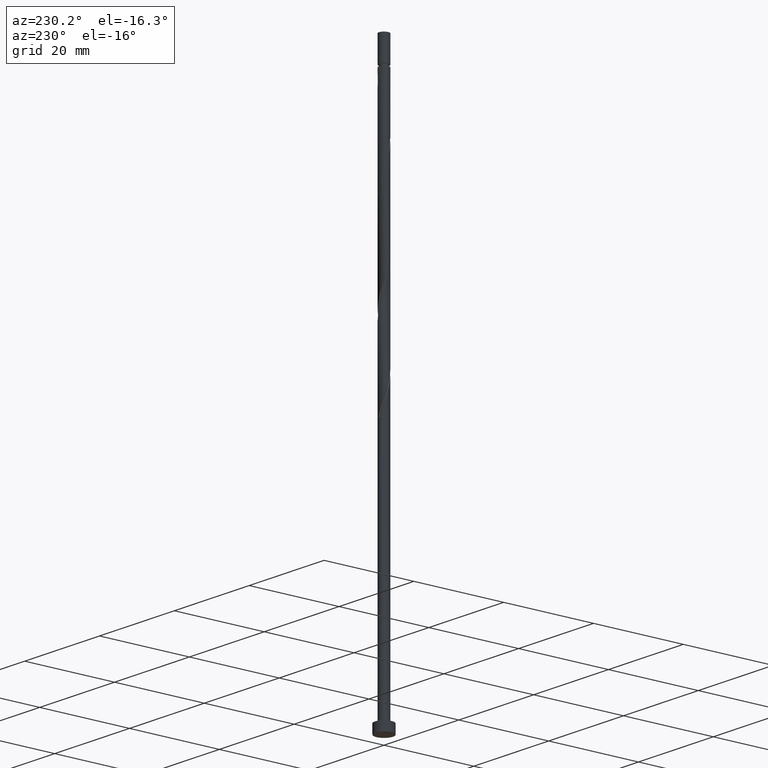
[diagram: clean part render]
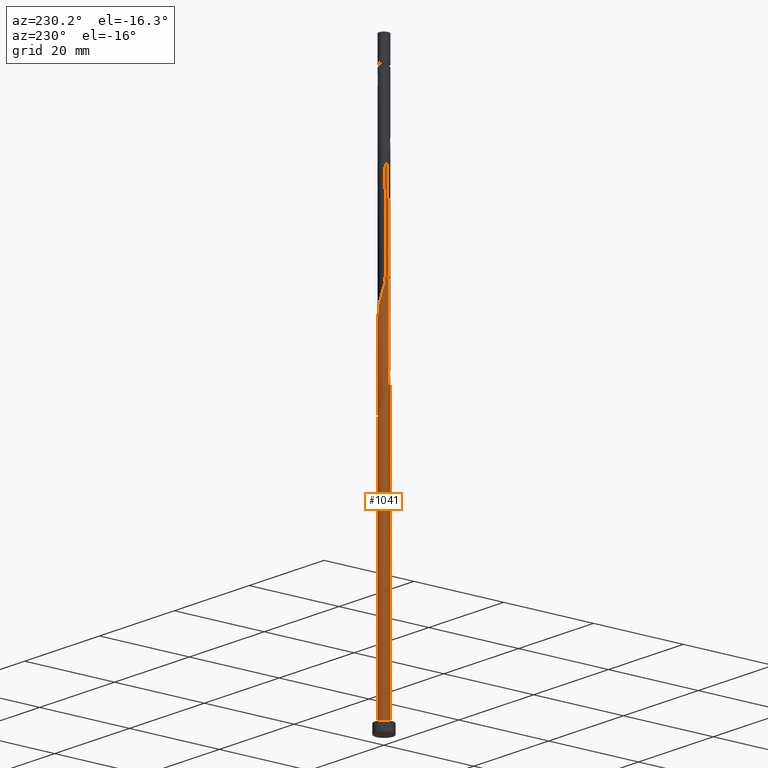
[diagram: same view with one face highlighted and labeled with its STEP entity id]
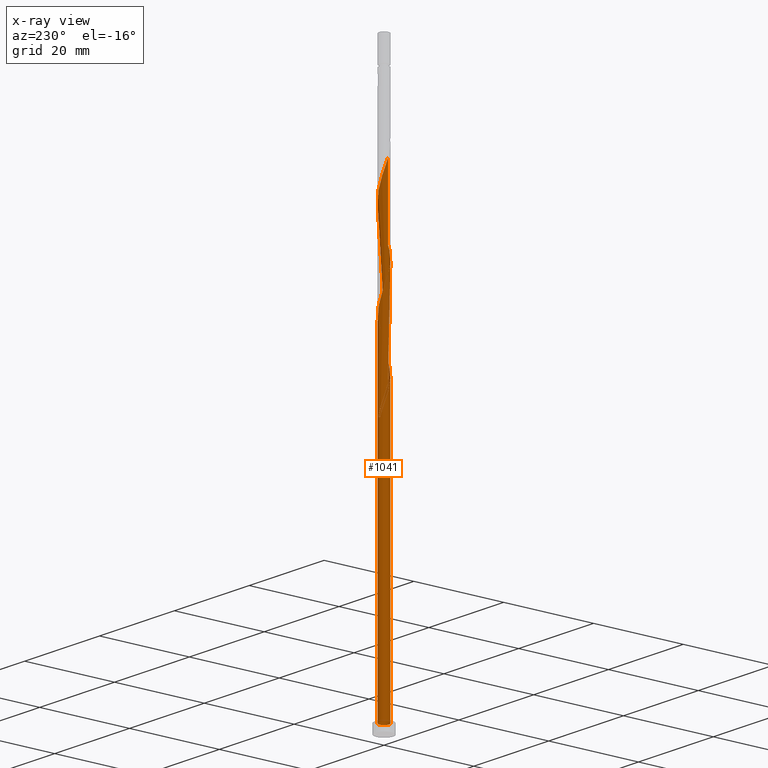
[diagram: x-ray of the same camera — body ghosted, the highlighted face saturated]
A machine part, auxiliary view. The second image highlights one B-rep face of the part: STEP entity #1041.
The next image is the same camera in x-ray: the body ghosted, the highlighted face saturated — about 0% of this face is hidden behind the body in this view.
In plain terms, the highlighted cylindrical surface (bore or boss wall) has radius 1.1 mm, axis along (-0, -0, -1).
Its self-contained STEP definition (entity closure, byte-faithful):
#5 = CARTESIAN_POINT ( 'NONE',  ( -0.7434557527517323683, 0.8107240860492294088, 59.56361197831976284 ) ) ;
#7 = CARTESIAN_POINT ( 'NONE',  ( -0.9575959585699627130, -0.5413039627884481675, 83.52194531165308433 ) ) ;
#8 = CARTESIAN_POINT ( 'NONE',  ( -1.100000000000001643, -3.748275695801401353E-16, 102.6488095368494839 ) ) ;
#14 = CARTESIAN_POINT ( 'NONE',  ( -1.078000000000001846, -0.2188972361634564656, 82.48027864498642714 ) ) ;
#17 = CIRCLE ( 'NONE', #398, 1.100000000000000089 ) ;
#22 = CARTESIAN_POINT ( 'NONE',  ( -0.5413039627884481675, 0.9575959585699624910, 99.14694531165307012 ) ) ;
#47 = CARTESIAN_POINT ( 'NONE',  ( -1.000784887120656830, 0.4565409178933442225, 59.56361197831974863 ) ) ;
#57 = CARTESIAN_POINT ( 'NONE',  ( 0.9575959585699627130, 0.5413039627884479454, 73.10527864498641293 ) ) ;
#66 = CARTESIAN_POINT ( 'NONE',  ( 0.04815880949360597241, -1.112669916238338219, 66.33444531165309854 ) ) ;
#68 = CARTESIAN_POINT ( 'NONE',  ( 1.073093864886444315, -0.2980321636614850500, 70.50111197831976995 ) ) ;
#70 = ORIENTED_EDGE ( 'NONE', *, *, #1308, .F. ) ;
#79 = CARTESIAN_POINT ( 'NONE',  ( 1.078000000000001846, 0.2188972361634563546, 72.06361197831975574 ) ) ;
#89 = ORIENTED_EDGE ( 'NONE', *, *, #100, .T. ) ;
#97 = VERTEX_POINT ( 'NONE', #531 ) ;
#100 = EDGE_CURVE ( 'NONE', #660, #97, #350, .T. ) ;
#101 = CARTESIAN_POINT ( 'NONE',  ( -0.3896356628333069727, 1.043330083761664806, 77.79277864498642714 ) ) ;
#108 = DIRECTION ( 'NONE',  ( 1.000000000000000000, 0.000000000000000000, 0.000000000000000000 ) ) ;
#109 = CARTESIAN_POINT ( 'NONE',  ( 0.04815880949360597241, -1.112669916238338219, 87.16777864498641293 ) ) ;
#117 = VECTOR ( 'NONE', #976, 1000.000000000000000 ) ;
#118 = CARTESIAN_POINT ( 'NONE',  ( -0.8718618333782606200, 0.6929722627435896953, 60.08444531165309854 ) ) ;
#120 = CARTESIAN_POINT ( 'NONE',  ( -0.04815880949360587526, 1.112669916238338219, 76.75111197831979837 ) ) ;
#125 = CARTESIAN_POINT ( 'NONE',  ( -1.078000000000001846, -0.2188972361634564656, 61.64694531165309854 ) ) ;
#127 = CARTESIAN_POINT ( 'NONE',  ( -0.5413039627884481675, 0.9575959585699624910, 78.31361197831976995 ) ) ;
#128 = CARTESIAN_POINT ( 'NONE',  ( -0.2188972361634562991, 1.078000000000001846, 56.43861197831975574 ) ) ;
#133 = CARTESIAN_POINT ( 'NONE',  ( 0.8718618333782610641, 0.6929722627435893623, 94.45944531165308433 ) ) ;
#138 = CARTESIAN_POINT ( 'NONE',  ( -0.7434557527517321462, -0.8107240860492292978, 63.73027864498641293 ) ) ;
#173 = CARTESIAN_POINT ( 'NONE',  ( -0.2188972361634562991, 1.078000000000001846, 56.43861197831975574 ) ) ;
#185 = CARTESIAN_POINT ( 'NONE',  ( 0.2188972361634567709, 1.078000000000001402, 56.43861197831975574 ) ) ;
#188 = ORIENTED_EDGE ( 'NONE', *, *, #686, .T. ) ;
#202 = VERTEX_POINT ( 'NONE', #773 ) ;
#204 = CARTESIAN_POINT ( 'NONE',  ( -0.6150496721252038945, 0.9284759093548696773, 59.04277864498644135 ) ) ;
#213 = CARTESIAN_POINT ( 'NONE',  ( -1.100000000000001865, -0.1105541596785120373, 61.31644744559066140 ) ) ;
#228 = CARTESIAN_POINT ( 'NONE',  ( -1.112669916238338219, -0.04815880949360610425, 81.95944531165309854 ) ) ;
#234 = CARTESIAN_POINT ( 'NONE',  ( -1.100000000000002087, 0.1105541596785108854, 61.97744317771552858 ) ) ;
#235 = CARTESIAN_POINT ( 'NONE',  ( 0.6150496721252040055, 0.9284759093548696773, 95.50111197831976995 ) ) ;
#240 = CARTESIAN_POINT ( 'NONE',  ( -1.043330083761664806, -0.3896356628333069727, 62.16777864498642003 ) ) ;
#243 = CARTESIAN_POINT ( 'NONE',  ( 0.3896356628333068617, -1.043330083761664806, 88.20944531165308433 ) ) ;
#247 = CARTESIAN_POINT ( 'NONE',  ( -0.6150496721252038945, -0.9284759093548696773, 64.25111197831975574 ) ) ;
#249 = CARTESIAN_POINT ( 'NONE',  ( 0.2980321636614851610, 1.073093864886444315, 96.54277864498642714 ) ) ;
#265 =( BOUNDED_CURVE ( )  B_SPLINE_CURVE ( 2, ( #1230, #213, #125, #240, #582, #1031, #138, #247, #621, #1297, #1188, #66, #280, #1342, #775, #442, #556, #1122, #632, #68, #521, #871, #79, #1019, #57, #1370, #448, #345, #456, #1010, #331, #120, #1257, #101, #127, #1349, #577, #796, #1017, #1131, #469, #228, #14, #912, #7, #563, #463, #1455, #1025, #903, #691, #109, #361, #243, #803, #1356, #896, #784, #1247, #810, #1145, #791, #1263, #1232, #338, #133, #1363, #235, #571, #249, #706, #1121, #1138, #1340, #22, #356, #1240, #554, #1001, #699, #586, #1035, #889 ),
 .UNSPECIFIED., .F., .T. ) 
 B_SPLINE_CURVE_WITH_KNOTS ( ( 3, 2, 2, 2, 2, 2, 2, 2, 2, 2, 2, 2, 2, 2, 2, 2, 2, 2, 2, 2, 2, 2, 2, 2, 2, 2, 2, 2, 2, 2, 2, 2, 2, 2, 2, 2, 2, 2, 2, 2, 2, 3 ),
 ( 0.05453220231385511735, 0.06250000000000000000, 0.07499999999999995559, 0.08750000000000002220, 0.09999999999999997780, 0.1125000000000000444, 0.1250000000000000000, 0.1374999999999999556, 0.1500000000000000222, 0.1624999999999999778, 0.1750000000000000444, 0.1875000000000000000, 0.1999999999999999556, 0.2125000000000000222, 0.2249999999999999778, 0.2375000000000000444, 0.2500000000000000000, 0.2624999999999999556, 0.2750000000000000222, 0.2874999999999999778, 0.3000000000000000444, 0.3125000000000000000, 0.3249999999999999556, 0.3375000000000000222, 0.3499999999999999778, 0.3625000000000000444, 0.3750000000000000000, 0.3874999999999999556, 0.4000000000000000222, 0.4124999999999999778, 0.4250000000000000444, 0.4375000000000000000, 0.4499999999999999556, 0.4625000000000000222, 0.4749999999999999778, 0.4875000000000000444, 0.5000000000000000000, 0.5124999999999999556, 0.5250000000000000222, 0.5374999999999999778, 0.5500000000000000444, 0.5545322023138551382 ),
 .UNSPECIFIED. ) 
 CURVE ( )  GEOMETRIC_REPRESENTATION_ITEM ( )  RATIONAL_B_SPLINE_CURVE ( ( 0.9039174447099470600, 0.9019565955404761359, 0.9090909090909247148, 0.8978984914501405568, 0.9090909090909247148, 0.8978984914501405568, 0.9090909090909247148, 0.8978984914501405568, 0.9090909090909247148, 0.8978984914501405568, 0.9090909090909247148, 0.8978984914501405568, 0.9090909090909247148, 0.8978984914501405568, 0.9090909090909247148, 0.8978984914501405568, 0.9090909090909247148, 0.8978984914501405568, 0.9090909090909247148, 0.8978984914501405568, 0.9090909090909247148, 0.8978984914501405568, 0.9090909090909247148, 0.8978984914501405568, 0.9090909090909247148, 0.8978984914501405568, 0.9090909090909247148, 0.8978984914501405568, 0.9090909090909247148, 0.8978984914501405568, 0.9090909090909247148, 0.8978984914501405568, 0.9090909090909247148, 0.8978984914501405568, 0.9090909090909247148, 0.8978984914501405568, 0.9090909090909247148, 0.8978984914501405568, 0.9090909090909247148, 0.8978984914501405568, 0.9090909090909247148, 0.8978984914501405568, 0.9090909090909247148, 0.8978984914501405568, 0.9090909090909247148, 0.8978984914501405568, 0.9090909090909247148, 0.8978984914501405568, 0.9090909090909247148, 0.8978984914501405568, 0.9090909090909247148, 0.8978984914501405568, 0.9090909090909247148, 0.8978984914501405568, 0.9090909090909247148, 0.8978984914501405568, 0.9090909090909247148, 0.8978984914501405568, 0.9090909090909247148, 0.8978984914501405568, 0.9090909090909247148, 0.8978984914501405568, 0.9090909090909247148, 0.8978984914501405568, 0.9090909090909247148, 0.8978984914501405568, 0.9090909090909247148, 0.8978984914501405568, 0.9090909090909247148, 0.8978984914501405568, 0.9090909090909247148, 0.8978984914501405568, 0.9090909090909247148, 0.8978984914501405568, 0.9090909090909247148, 0.8978984914501405568, 0.9090909090909247148, 0.8978984914501405568, 0.9090909090909247148, 0.8978984914501405568, 0.9090909090909247148, 0.9050328050005891356, 0.9039174447099468379 ) ) 
 REPRESENTATION_ITEM ( '' )  );
#274 = CIRCLE ( 'NONE', #859, 1.100000000000000089 ) ;
#280 = CARTESIAN_POINT ( 'NONE',  ( 0.2188972361634563546, -1.078000000000001846, 66.85527864498638451 ) ) ;
#293 = CARTESIAN_POINT ( 'NONE',  ( -1.073093864886444315, 0.2980321636614849390, 60.08444531165309144 ) ) ;
#319 = CARTESIAN_POINT ( 'NONE',  ( 0.000000000000000000, 0.000000000000000000, 2.000000000000000000 ) ) ;
#327 = CARTESIAN_POINT ( 'NONE',  ( 0.04815880949360618751, 1.112669916238338663, 56.95944531165310565 ) ) ;
#328 = VERTEX_POINT ( 'NONE', #128 ) ;
#331 = CARTESIAN_POINT ( 'NONE',  ( 0.1249366770839396151, 1.092881890562391600, 76.23027864498638451 ) ) ;
#337 = DIRECTION ( 'NONE',  ( -1.000000000000000000, 0.000000000000000000, 0.000000000000000000 ) ) ;
#338 = CARTESIAN_POINT ( 'NONE',  ( 0.9575959585699627130, 0.5413039627884479454, 93.93861197831974152 ) ) ;
#342 = DIRECTION ( 'NONE',  ( 0.000000000000000000, 0.000000000000000000, 1.000000000000000000 ) ) ;
#345 = CARTESIAN_POINT ( 'NONE',  ( 0.6150496721252040055, 0.9284759093548696773, 74.66777864498644135 ) ) ;
#350 = LINE ( 'NONE', #878, #117 ) ;
#356 = CARTESIAN_POINT ( 'NONE',  ( -0.6929722627435896953, 0.8718618333782610641, 99.66777864498644135 ) ) ;
#361 = CARTESIAN_POINT ( 'NONE',  ( 0.2188972361634563546, -1.078000000000001846, 87.68861197831975574 ) ) ;
#362 = VERTEX_POINT ( 'NONE', #8 ) ;
#388 = CARTESIAN_POINT ( 'NONE',  ( -0.9284759093548697884, 0.6150496721252037835, 59.04277864498642714 ) ) ;
#398 = AXIS2_PLACEMENT_3D ( 'NONE', #835, #1375, #1381 ) ;
#418 = CARTESIAN_POINT ( 'NONE',  ( -0.6929722627435896953, 0.8718618333782610641, 58.00111197831976284 ) ) ;
#439 = CARTESIAN_POINT ( 'NONE',  ( 0.000000000000000000, 0.000000000000000000, 2.000000000000000000 ) ) ;
#442 = CARTESIAN_POINT ( 'NONE',  ( 0.6929722627435893623, -0.8718618333782610641, 68.41777864498642714 ) ) ;
#448 = CARTESIAN_POINT ( 'NONE',  ( 0.7434557527517322573, 0.8107240860492290757, 74.14694531165305591 ) ) ;
#454 = FACE_OUTER_BOUND ( 'NONE', #1451, .T. ) ;
#456 = CARTESIAN_POINT ( 'NONE',  ( 0.4565409178933444445, 1.000784887120656830, 75.18861197831974152 ) ) ;
#460 = CARTESIAN_POINT ( 'NONE',  ( 0.2188972361634567709, 1.078000000000001402, 56.43861197831974863 ) ) ;
#463 = CARTESIAN_POINT ( 'NONE',  ( -0.7434557527517321462, -0.8107240860492292978, 84.56361197831975574 ) ) ;
#469 = CARTESIAN_POINT ( 'NONE',  ( -1.092881890562391600, 0.1249366770839393653, 81.43861197831975574 ) ) ;
#477 = EDGE_CURVE ( 'NONE', #1301, #1184, #666, .T. ) ;
#499 = EDGE_CURVE ( 'NONE', #660, #362, #265, .T. ) ;
#521 = CARTESIAN_POINT ( 'NONE',  ( 1.092881890562391600, -0.1249366770839395041, 71.02194531165307012 ) ) ;
#531 = CARTESIAN_POINT ( 'NONE',  ( -1.100000000000000089, 0.000000000000000000, 2.000000000000000000 ) ) ;
#547 = ORIENTED_EDGE ( 'NONE', *, *, #975, .T. ) ;
#554 = CARTESIAN_POINT ( 'NONE',  ( -0.9284759093548697884, 0.6150496721252037835, 100.7094453116530843 ) ) ;
#556 = CARTESIAN_POINT ( 'NONE',  ( 0.8107240860492292978, -0.7434557527517321462, 68.93861197831974152 ) ) ;
#563 = CARTESIAN_POINT ( 'NONE',  ( -0.8718618333782610641, -0.6929722627435896953, 84.04277864498645556 ) ) ;
#571 = CARTESIAN_POINT ( 'NONE',  ( 0.4565409178933444445, 1.000784887120656830, 96.02194531165305591 ) ) ;
#577 = CARTESIAN_POINT ( 'NONE',  ( -0.8107240860492292978, 0.7434557527517321462, 79.35527864498641293 ) ) ;
#582 = CARTESIAN_POINT ( 'NONE',  ( -0.9575959585699627130, -0.5413039627884481675, 62.68861197831974863 ) ) ;
#584 = CARTESIAN_POINT ( 'NONE',  ( -1.100000000000001865, 1.086999951782407472E-15, 62.31174775312337033 ) ) ;
#586 = CARTESIAN_POINT ( 'NONE',  ( -1.092881890562391600, 0.1249366770839393653, 102.2719453116530701 ) ) ;
#613 = CARTESIAN_POINT ( 'NONE',  ( -0.8107240860492292978, 0.7434557527517321462, 58.52194531165308433 ) ) ;
#621 = CARTESIAN_POINT ( 'NONE',  ( -0.4565409178933442780, -1.000784887120656830, 64.77194531165307012 ) ) ;
#626 = EDGE_CURVE ( 'NONE', #362, #1301, #816, .T. ) ;
#627 = DIRECTION ( 'NONE',  ( 1.000000000000000000, 0.000000000000000000, 0.000000000000000000 ) ) ;
#632 = CARTESIAN_POINT ( 'NONE',  ( 1.000784887120656830, -0.4565409178933442780, 69.98027864498639872 ) ) ;
#660 = VERTEX_POINT ( 'NONE', #924 ) ;
#662 = CARTESIAN_POINT ( 'NONE',  ( -0.4565409178933443335, 1.000784887120656830, 58.52194531165309854 ) ) ;
#666 =( BOUNDED_CURVE ( )  B_SPLINE_CURVE ( 2, ( #584, #234, #854, #887, #670, #118, #5, #204, #662, #1337, #1238, #327, #460 ),
 .UNSPECIFIED., .F., .T. ) 
 B_SPLINE_CURVE_WITH_KNOTS ( ( 3, 2, 2, 2, 2, 2, 3 ),
 ( 0.9295322023138550271, 0.9375000000000000000, 0.9499999999999999556, 0.9625000000000000222, 0.9749999999999999778, 0.9875000000000000444, 1.000000000000000000 ),
 .UNSPECIFIED. ) 
 CURVE ( )  GEOMETRIC_REPRESENTATION_ITEM ( )  RATIONAL_B_SPLINE_CURVE ( ( 0.9039174447099462828, 0.9019565955404753588, 0.9090909090909240486, 0.8978984914501398906, 0.9090909090909240486, 0.8978984914501398906, 0.9090909090909240486, 0.8978984914501398906, 0.9090909090909240486, 0.8978984914501398906, 0.9090909090909240486, 0.8978984914501398906, 0.9090909090909240486 ) ) 
 REPRESENTATION_ITEM ( '' )  );
#670 = CARTESIAN_POINT ( 'NONE',  ( -0.9575959585699626020, 0.5413039627884479454, 60.60527864498642714 ) ) ;
#681 = CARTESIAN_POINT ( 'NONE',  ( 0.000000000000000000, 0.000000000000000000, 125.0000000000000000 ) ) ;
#686 = EDGE_CURVE ( 'NONE', #328, #1184, #17, .T. ) ;
#691 = CARTESIAN_POINT ( 'NONE',  ( -0.1249366770839394208, -1.092881890562391600, 86.64694531165308433 ) ) ;
#699 = CARTESIAN_POINT ( 'NONE',  ( -1.073093864886444315, 0.2980321636614849390, 101.7511119783197557 ) ) ;
#706 = CARTESIAN_POINT ( 'NONE',  ( 0.1249366770839396151, 1.092881890562391600, 97.06361197831975574 ) ) ;
#746 = CARTESIAN_POINT ( 'NONE',  ( -1.092881890562391600, 0.1249366770839393653, 60.60527864498640582 ) ) ;
#769 = ORIENTED_EDGE ( 'NONE', *, *, #499, .F. ) ;
#773 = CARTESIAN_POINT ( 'NONE',  ( 1.100000000000000089, 0.000000000000000000, 2.000000000000000000 ) ) ;
#775 = CARTESIAN_POINT ( 'NONE',  ( 0.5413039627884480565, -0.9575959585699627130, 67.89694531165309854 ) ) ;
#784 = CARTESIAN_POINT ( 'NONE',  ( 0.9284759093548696773, -0.6150496721252038945, 90.29277864498641293 ) ) ;
#790 = DIRECTION ( 'NONE',  ( -0.000000000000000000, -0.000000000000000000, -1.000000000000000000 ) ) ;
#791 = CARTESIAN_POINT ( 'NONE',  ( 1.112669916238338219, 0.04815880949360592383, 92.37611197831978416 ) ) ;
#796 = CARTESIAN_POINT ( 'NONE',  ( -0.9284759093548697884, 0.6150496721252037835, 79.87611197831974152 ) ) ;
#803 = CARTESIAN_POINT ( 'NONE',  ( 0.5413039627884480565, -0.9575959585699627130, 88.73027864498642714 ) ) ;
#810 = CARTESIAN_POINT ( 'NONE',  ( 1.073093864886444315, -0.2980321636614850500, 91.33444531165312696 ) ) ;
#814 =( BOUNDED_CURVE ( )  B_SPLINE_CURVE ( 2, ( #173, #938, #1303, #418, #613, #388, #47, #293, #746, #1066, #856 ),
 .UNSPECIFIED., .F., .T. ) 
 B_SPLINE_CURVE_WITH_KNOTS ( ( 3, 2, 2, 2, 2, 3 ),
 ( 0.000000000000000000, 0.01249999999999995559, 0.02500000000000002220, 0.03749999999999997780, 0.05000000000000004441, 0.05453220231385511735 ),
 .UNSPECIFIED. ) 
 CURVE ( )  GEOMETRIC_REPRESENTATION_ITEM ( )  RATIONAL_B_SPLINE_CURVE ( ( 0.9090909090909247148, 0.8978984914501405568, 0.9090909090909247148, 0.8978984914501405568, 0.9090909090909247148, 0.8978984914501405568, 0.9090909090909247148, 0.8978984914501405568, 0.9090909090909247148, 0.9050328050005892466, 0.9039174447099470600 ) ) 
 REPRESENTATION_ITEM ( '' )  );
#816 = LINE ( 'NONE', #944, #1426 ) ;
#822 = DIRECTION ( 'NONE',  ( -0.000000000000000000, -0.000000000000000000, -1.000000000000000000 ) ) ;
#835 = CARTESIAN_POINT ( 'NONE',  ( 0.000000000000000000, 0.000000000000000000, 56.43861197831975574 ) ) ;
#854 = CARTESIAN_POINT ( 'NONE',  ( -1.078000000000001402, 0.2188972361634565489, 61.64694531165309144 ) ) ;
#856 = CARTESIAN_POINT ( 'NONE',  ( -1.100000000000001643, -9.445654753419533639E-16, 60.98214287018283386 ) ) ;
#859 = AXIS2_PLACEMENT_3D ( 'NONE', #439, #880, #627 ) ;
#871 = CARTESIAN_POINT ( 'NONE',  ( 1.112669916238338219, 0.04815880949360592383, 71.54277864498642714 ) ) ;
#878 = CARTESIAN_POINT ( 'NONE',  ( -1.100000000000000089, 0.000000000000000000, 125.0000000000000000 ) ) ;
#880 = DIRECTION ( 'NONE',  ( 0.000000000000000000, 0.000000000000000000, 1.000000000000000000 ) ) ;
#887 = CARTESIAN_POINT ( 'NONE',  ( -1.043330083761665028, 0.3896356628333069172, 61.12611197831976995 ) ) ;
#889 = CARTESIAN_POINT ( 'NONE',  ( -1.100000000000001643, -3.748275695801401353E-16, 102.6488095368494697 ) ) ;
#895 = CYLINDRICAL_SURFACE ( 'NONE', #1266, 1.100000000000000089 ) ;
#896 = CARTESIAN_POINT ( 'NONE',  ( 0.8107240860492292978, -0.7434557527517321462, 89.77194531165305591 ) ) ;
#903 = CARTESIAN_POINT ( 'NONE',  ( -0.2980321636614850500, -1.073093864886444315, 86.12611197831975574 ) ) ;
#912 = CARTESIAN_POINT ( 'NONE',  ( -1.043330083761664806, -0.3896356628333069727, 83.00111197831974152 ) ) ;
#924 = CARTESIAN_POINT ( 'NONE',  ( -1.100000000000001643, -9.445654753419533639E-16, 60.98214287018283386 ) ) ;
#938 = CARTESIAN_POINT ( 'NONE',  ( -0.3896356628333069727, 1.043330083761664806, 56.95944531165307723 ) ) ;
#944 = CARTESIAN_POINT ( 'NONE',  ( -1.100000000000000089, 0.000000000000000000, 125.0000000000000000 ) ) ;
#953 = EDGE_CURVE ( 'NONE', #202, #97, #274, .T. ) ;
#975 = EDGE_CURVE ( 'NONE', #97, #202, #1033, .T. ) ;
#976 = DIRECTION ( 'NONE',  ( -0.000000000000000000, -0.000000000000000000, -1.000000000000000000 ) ) ;
#987 = ORIENTED_EDGE ( 'NONE', *, *, #100, .F. ) ;
#1001 = CARTESIAN_POINT ( 'NONE',  ( -1.000784887120656830, 0.4565409178933442225, 101.2302786449864129 ) ) ;
#1007 = ORIENTED_EDGE ( 'NONE', *, *, #953, .T. ) ;
#1010 = CARTESIAN_POINT ( 'NONE',  ( 0.2980321636614851610, 1.073093864886444315, 75.70944531165308433 ) ) ;
#1017 = CARTESIAN_POINT ( 'NONE',  ( -1.000784887120656830, 0.4565409178933442225, 80.39694531165307012 ) ) ;
#1019 = CARTESIAN_POINT ( 'NONE',  ( 1.043330083761664806, 0.3896356628333066952, 72.58444531165308433 ) ) ;
#1025 = CARTESIAN_POINT ( 'NONE',  ( -0.4565409178933442780, -1.000784887120656830, 85.60527864498641293 ) ) ;
#1031 = CARTESIAN_POINT ( 'NONE',  ( -0.8718618333782610641, -0.6929722627435896953, 63.20944531165310565 ) ) ;
#1033 = CIRCLE ( 'NONE', #1287, 1.100000000000000089 ) ;
#1035 = CARTESIAN_POINT ( 'NONE',  ( -1.100000000000001643, 0.06267111119107743322, 102.4592984476421975 ) ) ;
#1041 = ADVANCED_FACE ( 'NONE', ( #454 ), #895, .T. ) ;
#1066 = CARTESIAN_POINT ( 'NONE',  ( -1.100000000000001643, 0.06267111119107772466, 60.79263178097554032 ) ) ;
#1105 = ORIENTED_EDGE ( 'NONE', *, *, #626, .F. ) ;
#1121 = CARTESIAN_POINT ( 'NONE',  ( -0.04815880949360587526, 1.112669916238338219, 97.58444531165309854 ) ) ;
#1122 = CARTESIAN_POINT ( 'NONE',  ( 0.9284759093548696773, -0.6150496721252038945, 69.45944531165312696 ) ) ;
#1131 = CARTESIAN_POINT ( 'NONE',  ( -1.073093864886444315, 0.2980321636614849390, 80.91777864498644135 ) ) ;
#1138 = CARTESIAN_POINT ( 'NONE',  ( -0.2188972361634562158, 1.078000000000001846, 98.10527864498641293 ) ) ;
#1145 = CARTESIAN_POINT ( 'NONE',  ( 1.092881890562391600, -0.1249366770839395041, 91.85527864498642714 ) ) ;
#1184 = VERTEX_POINT ( 'NONE', #185 ) ;
#1188 = CARTESIAN_POINT ( 'NONE',  ( -0.1249366770839394208, -1.092881890562391600, 65.81361197831974152 ) ) ;
#1230 = CARTESIAN_POINT ( 'NONE',  ( -1.100000000000001643, -9.445654753419533639E-16, 60.98214287018283386 ) ) ;
#1232 = CARTESIAN_POINT ( 'NONE',  ( 1.043330083761664806, 0.3896356628333066952, 93.41777864498641293 ) ) ;
#1238 = CARTESIAN_POINT ( 'NONE',  ( -0.1249366770839393098, 1.092881890562391156, 57.48027864498642714 ) ) ;
#1240 = CARTESIAN_POINT ( 'NONE',  ( -0.8107240860492292978, 0.7434557527517321462, 100.1886119783197131 ) ) ;
#1247 = CARTESIAN_POINT ( 'NONE',  ( 1.000784887120656830, -0.4565409178933442780, 90.81361197831974152 ) ) ;
#1257 = CARTESIAN_POINT ( 'NONE',  ( -0.2188972361634562158, 1.078000000000001846, 77.27194531165308433 ) ) ;
#1263 = CARTESIAN_POINT ( 'NONE',  ( 1.078000000000001846, 0.2188972361634563546, 92.89694531165307012 ) ) ;
#1266 = AXIS2_PLACEMENT_3D ( 'NONE', #681, #790, #337 ) ;
#1287 = AXIS2_PLACEMENT_3D ( 'NONE', #319, #342, #108 ) ;
#1297 = CARTESIAN_POINT ( 'NONE',  ( -0.2980321636614850500, -1.073093864886444315, 65.29277864498642714 ) ) ;
#1301 = VERTEX_POINT ( 'NONE', #1413 ) ;
#1303 = CARTESIAN_POINT ( 'NONE',  ( -0.5413039627884481675, 0.9575959585699624910, 57.48027864498640582 ) ) ;
#1308 = EDGE_CURVE ( 'NONE', #328, #660, #814, .T. ) ;
#1331 = ORIENTED_EDGE ( 'NONE', *, *, #477, .F. ) ;
#1337 = CARTESIAN_POINT ( 'NONE',  ( -0.2980321636614848835, 1.073093864886444537, 58.00111197831977705 ) ) ;
#1340 = CARTESIAN_POINT ( 'NONE',  ( -0.3896356628333069727, 1.043330083761664806, 98.62611197831976995 ) ) ;
#1342 = CARTESIAN_POINT ( 'NONE',  ( 0.3896356628333068617, -1.043330083761664806, 67.37611197831976995 ) ) ;
#1349 = CARTESIAN_POINT ( 'NONE',  ( -0.6929722627435896953, 0.8718618333782610641, 78.83444531165309854 ) ) ;
#1356 = CARTESIAN_POINT ( 'NONE',  ( 0.6929722627435893623, -0.8718618333782610641, 89.25111197831976995 ) ) ;
#1363 = CARTESIAN_POINT ( 'NONE',  ( 0.7434557527517322573, 0.8107240860492290757, 94.98027864498641293 ) ) ;
#1370 = CARTESIAN_POINT ( 'NONE',  ( 0.8718618333782610641, 0.6929722627435893623, 73.62611197831975574 ) ) ;
#1375 = DIRECTION ( 'NONE',  ( 0.000000000000000000, -0.000000000000000000, -1.000000000000000000 ) ) ;
#1381 = DIRECTION ( 'NONE',  ( -1.000000000000000000, 0.000000000000000000, 0.000000000000000000 ) ) ;
#1413 = CARTESIAN_POINT ( 'NONE',  ( -1.100000000000001865, 1.086999951782407669E-15, 62.31174775312337033 ) ) ;
#1426 = VECTOR ( 'NONE', #822, 1000.000000000000000 ) ;
#1451 = EDGE_LOOP ( 'NONE', ( #1105, #769, #89, #547, #1007, #987, #70, #188, #1331 ) ) ;
#1455 = CARTESIAN_POINT ( 'NONE',  ( -0.6150496721252038945, -0.9284759093548696773, 85.08444531165311275 ) ) ;